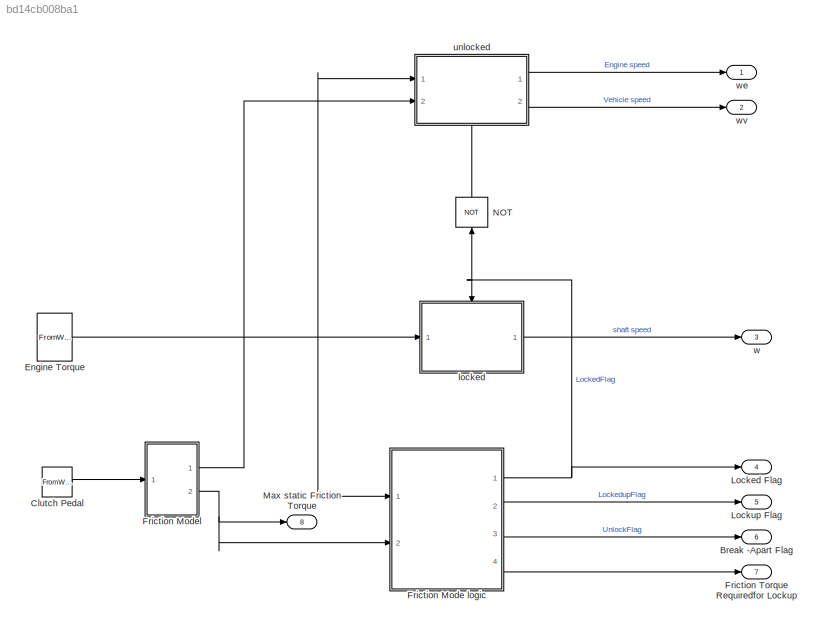
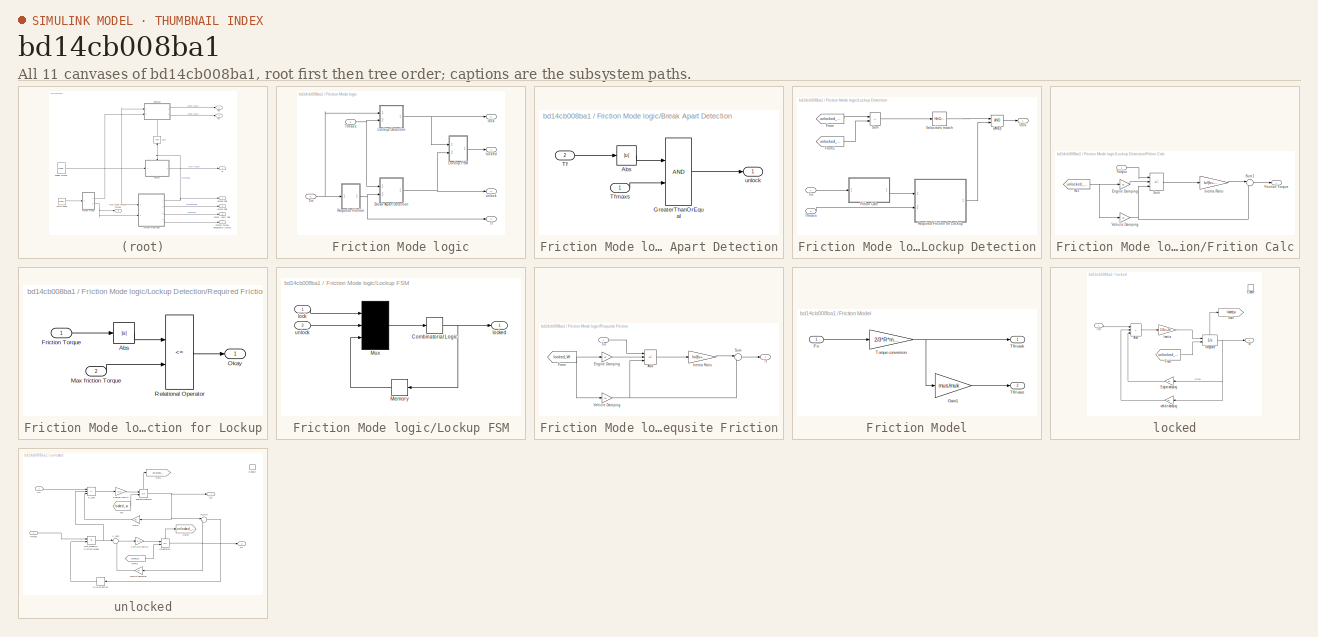
[diagram: thumbnail index - all 11 canvases of the model, root first then tree order]
MODEL slx_bd14cb008ba1
KIND model
CONFIG AbsTol = auto
CONFIG EnableMultiTasking = off
CONFIG FixedStep = auto
CONFIG MaxStep = auto
CONFIG MinStep = auto
CONFIG RelTol = 1e-3
CONFIG SampleTimeConstraint = Unconstrained
CONFIG SolverName = VariableStepAuto
CONFIG StartTime = 0.0
CONFIG StopTime = 10.0
BLOCK [Outport] Break -Apart Flag
  Port = 6
BLOCK [FromWorkspace] Clutch Pedal
  VariableName = Fn
  ZeroCross = off
BLOCK [FromWorkspace] Engine Torque
  VariableName = Tin
  ZeroCross = off
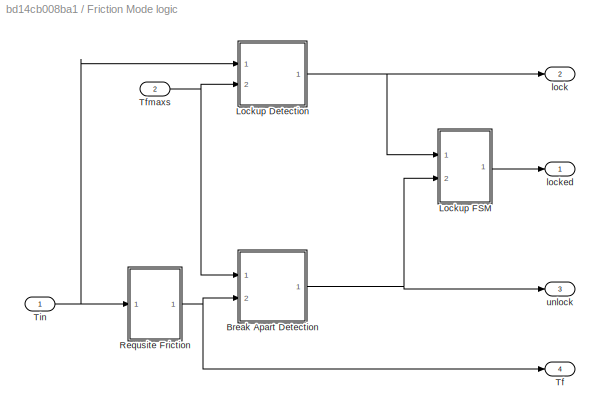
BLOCK [SubSystem] Friction Mode logic
  Ports = [2, 4]
  RequestExecContextInheritance = off
BLOCK [SubSystem] Friction Mode logic/Break Apart Detection
  Ports = [2, 1]
  RequestExecContextInheritance = off
BLOCK [Abs] Friction Mode logic/Break Apart Detection/Abs
  SaturateOnIntegerOverflow = off
BLOCK [RelationalOperator] Friction Mode logic/Break Apart Detection/GreaterThanOrEqual
  InputSameDT = off
  OutDataTypeStr = boolean
  Ports = [2, 1]
  RndMeth = Simplest
BLOCK [Inport] Friction Mode logic/Break Apart Detection/Tf
  Port = 2
BLOCK [Inport] Friction Mode logic/Break Apart Detection/Tfmaxs
BLOCK [Outport] Friction Mode logic/Break Apart Detection/unlock
BLOCK [SubSystem] Friction Mode logic/Lockup Detection
  Ports = [2, 1]
  RequestExecContextInheritance = off
BLOCK [Logic] Friction Mode logic/Lockup Detection/(AND)
  AllPortsSameDT = off
  IconShape = distinctive
  OutDataTypeStr = boolean
  Ports = [2, 1]
BLOCK [SubSystem] Friction Mode logic/Lockup Detection/Frition Calc
  Ports = [1, 1]
  RequestExecContextInheritance = off
BLOCK [Gain] Friction Mode logic/Lockup Detection/Frition Calc/Engine Damping
  Gain = bc
BLOCK [Outport] Friction Mode logic/Lockup Detection/Frition Calc/Friction Torque
BLOCK [Gain] Friction Mode logic/Lockup Detection/Frition Calc/Inertia Ratio
  Gain = Iv/(Iv+Ic)
BLOCK [Sum] Friction Mode logic/Lockup Detection/Frition Calc/Sum
  IconShape = rectangular
  Inputs = |+--
  Ports = [3, 1]
BLOCK [Sum] Friction Mode logic/Lockup Detection/Frition Calc/Sum1
  Inputs = |++
  Ports = [2, 1]
BLOCK [Inport] Friction Mode logic/Lockup Detection/Frition Calc/Torque
BLOCK [Gain] Friction Mode logic/Lockup Detection/Frition Calc/Vehicle Damping
  Gain = bv
BLOCK [From] Friction Mode logic/Lockup Detection/Frition Calc/W1
  GotoTag = unlocked_We
BLOCK [From] Friction Mode logic/Lockup Detection/From
  GotoTag = unlocked_we
  TagVisibility = global
BLOCK [From] Friction Mode logic/Lockup Detection/From1
  GotoTag = unlocked_wv
  TagVisibility = global
BLOCK [SubSystem] Friction Mode logic/Lockup Detection/Required Friction for Lockup
  Ports = [2, 1]
  RequestExecContextInheritance = off
BLOCK [Abs] Friction Mode logic/Lockup Detection/Required Friction for Lockup/Abs
  SaturateOnIntegerOverflow = off
BLOCK [Inport] Friction Mode logic/Lockup Detection/Required Friction for Lockup/Friction Torque
BLOCK [Inport] Friction Mode logic/Lockup Detection/Required Friction for Lockup/Max friction Torque
  Port = 2
BLOCK [Outport] Friction Mode logic/Lockup Detection/Required Friction for Lockup/Okay
BLOCK [RelationalOperator] Friction Mode logic/Lockup Detection/Required Friction for Lockup/Relational Operator
  InputSameDT = off
  Operator = <=
  OutDataTypeStr = boolean
  Ports = [2, 1]
  RndMeth = Simplest
BLOCK [Sum] Friction Mode logic/Lockup Detection/Sum
  IconShape = rectangular
  Inputs = |+-
  Ports = [2, 1]
BLOCK [Inport] Friction Mode logic/Lockup Detection/Tfmaxs
  Port = 2
BLOCK [Inport] Friction Mode logic/Lockup Detection/Tin
BLOCK [HitCross] Friction Mode logic/Lockup Detection/Velocities match
  Ports = [1, 1]
BLOCK [Outport] Friction Mode logic/Lockup Detection/lock
BLOCK [SubSystem] Friction Mode logic/Lockup FSM
  Ports = [2, 1]
  RequestExecContextInheritance = off
BLOCK [CombinatorialLogic] Friction Mode logic/Lockup FSM/Combinatorial Logic
  TruthTable = [0;1;0;0;1;1;1;0]
BLOCK [Memory] Friction Mode logic/Lockup FSM/Memory
  NameLocation = top
BLOCK [Mux] Friction Mode logic/Lockup FSM/Mux
  Inputs = 3
  Ports = [3, 1]
BLOCK [Inport] Friction Mode logic/Lockup FSM/lock
BLOCK [Outport] Friction Mode logic/Lockup FSM/locked
BLOCK [Inport] Friction Mode logic/Lockup FSM/unlock
  Port = 2
BLOCK [SubSystem] Friction Mode logic/Requsite Friction
  Ports = [1, 1]
  RequestExecContextInheritance = off
BLOCK [Sum] Friction Mode logic/Requsite Friction/Add
  IconShape = rectangular
  Inputs = +--
  Ports = [3, 1]
BLOCK [Gain] Friction Mode logic/Requsite Friction/Engine Damping
  Gain = bc
BLOCK [From] Friction Mode logic/Requsite Friction/From
  GotoTag = locked_W
BLOCK [Gain] Friction Mode logic/Requsite Friction/Inertia Ratio
  Gain = Iv/(Iv+Ic)
BLOCK [Sum] Friction Mode logic/Requsite Friction/Sum
  Inputs = |++
  Ports = [2, 1]
BLOCK [Outport] Friction Mode logic/Requsite Friction/Tf
BLOCK [Inport] Friction Mode logic/Requsite Friction/Tin
BLOCK [Gain] Friction Mode logic/Requsite Friction/Vehicle Damping
  Gain = bv
BLOCK [Outport] Friction Mode logic/Tf
  Port = 4
BLOCK [Inport] Friction Mode logic/Tfmaxs
  Port = 2
BLOCK [Inport] Friction Mode logic/Tin
BLOCK [Outport] Friction Mode logic/lock
  Port = 2
BLOCK [Outport] Friction Mode logic/locked
BLOCK [Outport] Friction Mode logic/unlock
  Port = 3
BLOCK [SubSystem] Friction Model
  Ports = [1, 2]
  RequestExecContextInheritance = off
BLOCK [Inport] Friction Model/Fn
BLOCK [Gain] Friction Model/Gain1
  Gain = mus/muk
BLOCK [Outport] Friction Model/Tfmaxk
BLOCK [Outport] Friction Model/Tfmaxs
  Port = 2
BLOCK [Gain] Friction Model/Torque conversion
  Gain = 2/3*R*muk
BLOCK [Outport] Friction Torque Requiredfor Lockup
  Port = 7
BLOCK [Outport] Locked Flag
  Port = 4
BLOCK [Outport] Lockup Flag
  Port = 5
BLOCK [Outport] Max static Friction Torque
  Port = 8
BLOCK [Logic] NOT
  AllPortsSameDT = off
  IconShape = distinctive
  NameLocation = right
  Operator = NOT
  OutDataTypeStr = fixdt(1,16)
  Ports = [1, 1]
BLOCK [SubSystem] locked
  Ports = [1, 1, 1]
  RequestExecContextInheritance = off
BLOCK [Sum] locked/Add
  IconShape = rectangular
  Inputs = +--
  Ports = [3, 1]
BLOCK [EnablePort] locked/Enable
  Ports = []
BLOCK [Gain] locked/Engine damping
  Gain = bc
  NameLocation = top
BLOCK [From] locked/From
  GotoTag = unlocked_we
  IconDisplay = Signal name
  NameLocation = right
  TagVisibility = global
BLOCK [Goto] locked/Goto
  GotoTag = locked_w
  TagVisibility = global
BLOCK [Gain] locked/Inertia
  Gain = 1/Iv+Ic
BLOCK [Integrator] locked/Integrator
  InitialConditionSource = external
  Ports = [2, 1, 0, 0, 1]
  ShowStatePort = on
BLOCK [Inport] locked/Tin
BLOCK [Gain] locked/vehicle damping
  Gain = bv
  NameLocation = top
BLOCK [Outport] locked/w
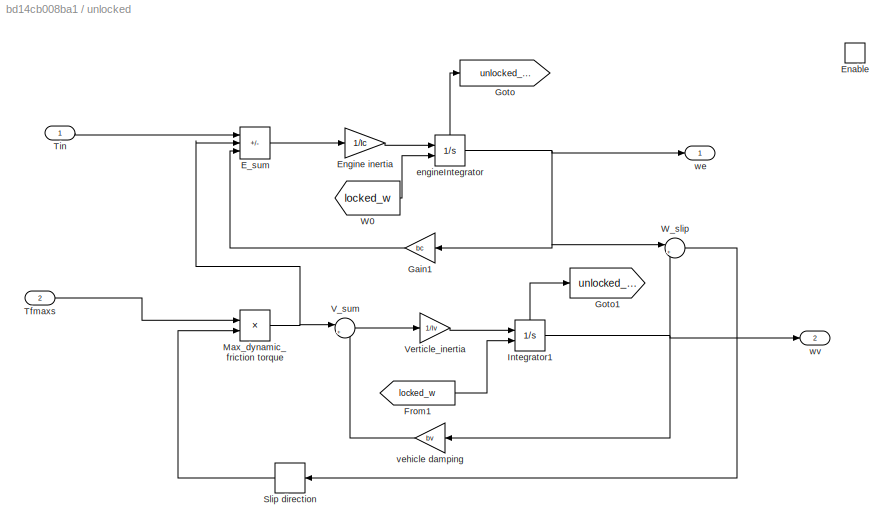
BLOCK [SubSystem] unlocked
  NameLocation = top
  Ports = [2, 2, 1]
  RequestExecContextInheritance = off
BLOCK [Sum] unlocked/E_sum
  IconShape = rectangular
  Inputs = +--
  Ports = [3, 1]
BLOCK [EnablePort] unlocked/Enable
  Ports = []
BLOCK [Gain] unlocked/Engine inertia
  Gain = 1/Ic
BLOCK [From] unlocked/From1
  GotoTag = locked_w
  TagVisibility = global
BLOCK [Gain] unlocked/Gain1
  Gain = bc
  NameLocation = top
BLOCK [Goto] unlocked/Goto
  GotoTag = unlocked_we
  TagVisibility = global
BLOCK [Goto] unlocked/Goto1
  GotoTag = unlocked_wv
  TagVisibility = global
BLOCK [Integrator] unlocked/Integrator1
  InitialConditionSource = external
  Ports = [2, 1, 0, 0, 1]
  ShowStatePort = on
BLOCK [Product] unlocked/Max_dynamic_friction torque
  Ports = [2, 1]
BLOCK [Signum] unlocked/Slip direction
  NameLocation = top
BLOCK [Inport] unlocked/Tfmaxs
  Port = 2
BLOCK [Inport] unlocked/Tin
BLOCK [Sum] unlocked/V_sum
  Inputs = |+-
  Ports = [2, 1]
BLOCK [Gain] unlocked/Verticle_inertia
  Gain = 1/Iv
BLOCK [From] unlocked/W0
  GotoTag = locked_w
  TagVisibility = global
BLOCK [Sum] unlocked/W_slip
  Inputs = |+-
  NameLocation = right
  Ports = [2, 1]
BLOCK [Integrator] unlocked/engineIntegrator
  InitialConditionSource = external
  Ports = [2, 1, 0, 0, 1]
  ShowStatePort = on
BLOCK [Gain] unlocked/vehicle damping
  Gain = bv
  NameLocation = top
BLOCK [Outport] unlocked/we
BLOCK [Outport] unlocked/wv
  Port = 2
BLOCK [Outport] w
  Port = 3
BLOCK [Outport] we
BLOCK [Outport] wv
  Port = 2
LINE Clutch Pedal:1 -> Friction Model:1
NET Engine Torque:1 -> Friction Mode logic:1, locked:1, unlocked:1
LINE Friction Mode logic/Break Apart Detection/Abs:1 -> Friction Mode logic/Break Apart Detection/GreaterThanOrEqual:1
LINE Friction Mode logic/Break Apart Detection/GreaterThanOrEqual:1 -> Friction Mode logic/Break Apart Detection/unlock:1
LINE Friction Mode logic/Break Apart Detection/Tf:1 -> Friction Mode logic/Break Apart Detection/Abs:1
LINE Friction Mode logic/Break Apart Detection/Tfmaxs:1 -> Friction Mode logic/Break Apart Detection/GreaterThanOrEqual:2
NET Friction Mode logic/Break Apart Detection:1 -> Friction Mode logic/Lockup FSM:2, Friction Mode logic/unlock:1
LINE Friction Mode logic/Lockup Detection/(AND):1 -> Friction Mode logic/Lockup Detection/lock:1
LINE Friction Mode logic/Lockup Detection/Frition Calc/Engine Damping:1 -> Friction Mode logic/Lockup Detection/Frition Calc/Sum:2
LINE Friction Mode logic/Lockup Detection/Frition Calc/Inertia Ratio:1 -> Friction Mode logic/Lockup Detection/Frition Calc/Sum1:1
LINE Friction Mode logic/Lockup Detection/Frition Calc/Sum1:1 -> Friction Mode logic/Lockup Detection/Frition Calc/Friction Torque:1
LINE Friction Mode logic/Lockup Detection/Frition Calc/Sum:1 -> Friction Mode logic/Lockup Detection/Frition Calc/Inertia Ratio:1
LINE Friction Mode logic/Lockup Detection/Frition Calc/Torque:1 -> Friction Mode logic/Lockup Detection/Frition Calc/Sum:1
NET Friction Mode logic/Lockup Detection/Frition Calc/Vehicle Damping:1 -> Friction Mode logic/Lockup Detection/Frition Calc/Sum1:2, Friction Mode logic/Lockup Detection/Frition Calc/Sum:3
NET Friction Mode logic/Lockup Detection/Frition Calc/W1:1 -> Friction Mode logic/Lockup Detection/Frition Calc/Engine Damping:1, Friction Mode logic/Lockup Detection/Frition Calc/Vehicle Damping:1
LINE Friction Mode logic/Lockup Detection/Frition Calc:1 -> Friction Mode logic/Lockup Detection/Required Friction for Lockup:1
LINE Friction Mode logic/Lockup Detection/From1:1 -> Friction Mode logic/Lockup Detection/Sum:2
LINE Friction Mode logic/Lockup Detection/From:1 -> Friction Mode logic/Lockup Detection/Sum:1
LINE Friction Mode logic/Lockup Detection/Required Friction for Lockup/Abs:1 -> Friction Mode logic/Lockup Detection/Required Friction for Lockup/Relational Operator:1
LINE Friction Mode logic/Lockup Detection/Required Friction for Lockup/Friction Torque:1 -> Friction Mode logic/Lockup Detection/Required Friction for Lockup/Abs:1
LINE Friction Mode logic/Lockup Detection/Required Friction for Lockup/Max friction Torque:1 -> Friction Mode logic/Lockup Detection/Required Friction for Lockup/Relational Operator:2
LINE Friction Mode logic/Lockup Detection/Required Friction for Lockup/Relational Operator:1 -> Friction Mode logic/Lockup Detection/Required Friction for Lockup/Okay:1
LINE Friction Mode logic/Lockup Detection/Required Friction for Lockup:1 -> Friction Mode logic/Lockup Detection/(AND):2
LINE Friction Mode logic/Lockup Detection/Sum:1 -> Friction Mode logic/Lockup Detection/Velocities match:1
LINE Friction Mode logic/Lockup Detection/Tfmaxs:1 -> Friction Mode logic/Lockup Detection/Required Friction for Lockup:2
LINE Friction Mode logic/Lockup Detection/Tin:1 -> Friction Mode logic/Lockup Detection/Frition Calc:1
LINE Friction Mode logic/Lockup Detection/Velocities match:1 -> Friction Mode logic/Lockup Detection/(AND):1
NET Friction Mode logic/Lockup Detection:1 -> Friction Mode logic/Lockup FSM:1, Friction Mode logic/lock:1
NET Friction Mode logic/Lockup FSM/Combinatorial Logic:1 -> Friction Mode logic/Lockup FSM/Memory:1, Friction Mode logic/Lockup FSM/locked:1
LINE Friction Mode logic/Lockup FSM/Memory:1 -> Friction Mode logic/Lockup FSM/Mux:3
LINE Friction Mode logic/Lockup FSM/Mux:1 -> Friction Mode logic/Lockup FSM/Combinatorial Logic:1
LINE Friction Mode logic/Lockup FSM/lock:1 -> Friction Mode logic/Lockup FSM/Mux:1
LINE Friction Mode logic/Lockup FSM/unlock:1 -> Friction Mode logic/Lockup FSM/Mux:2
LINE Friction Mode logic/Lockup FSM:1 -> Friction Mode logic/locked:1
LINE Friction Mode logic/Requsite Friction/Add:1 -> Friction Mode logic/Requsite Friction/Inertia Ratio:1
LINE Friction Mode logic/Requsite Friction/Engine Damping:1 -> Friction Mode logic/Requsite Friction/Add:2
NET Friction Mode logic/Requsite Friction/From:1 -> Friction Mode logic/Requsite Friction/Engine Damping:1, Friction Mode logic/Requsite Friction/Vehicle Damping:1
LINE Friction Mode logic/Requsite Friction/Inertia Ratio:1 -> Friction Mode logic/Requsite Friction/Sum:1
LINE Friction Mode logic/Requsite Friction/Sum:1 -> Friction Mode logic/Requsite Friction/Tf:1
LINE Friction Mode logic/Requsite Friction/Tin:1 -> Friction Mode logic/Requsite Friction/Add:1
NET Friction Mode logic/Requsite Friction/Vehicle Damping:1 -> Friction Mode logic/Requsite Friction/Add:3, Friction Mode logic/Requsite Friction/Sum:2
NET Friction Mode logic/Requsite Friction:1 -> Friction Mode logic/Break Apart Detection:2, Friction Mode logic/Tf:1
NET Friction Mode logic/Tfmaxs:1 -> Friction Mode logic/Break Apart Detection:1, Friction Mode logic/Lockup Detection:2
NET Friction Mode logic/Tin:1 -> Friction Mode logic/Lockup Detection:1, Friction Mode logic/Requsite Friction:1
NET Friction Mode logic:1 -> Locked Flag:1, NOT:1, locked:enable
LINE Friction Mode logic:2 -> Lockup Flag:1
LINE Friction Mode logic:3 -> Break -Apart Flag:1
LINE Friction Mode logic:4 -> Friction Torque Requiredfor Lockup:1
LINE Friction Model/Fn:1 -> Friction Model/Torque conversion:1
LINE Friction Model/Gain1:1 -> Friction Model/Tfmaxs:1
NET Friction Model/Torque conversion:1 -> Friction Model/Gain1:1, Friction Model/Tfmaxk:1
LINE Friction Model:1 -> unlocked:2
NET Friction Model:2 -> Friction Mode logic:2, Max static Friction Torque:1
LINE NOT:1 -> unlocked:enable
LINE locked/Add:1 -> locked/Inertia:1
LINE locked/Engine damping:1 -> locked/Add:3
LINE locked/From:1 -> locked/Integrator:2
LINE locked/Inertia:1 -> locked/Integrator:1
NET locked/Integrator:1 -> locked/Engine damping:1, locked/vehicle damping:1, locked/w:1
LINE locked/Integrator:state -> locked/Goto:1
LINE locked/Tin:1 -> locked/Add:1
LINE locked/vehicle damping:1 -> locked/Add:2
LINE locked:1 -> w:1
LINE unlocked/E_sum:1 -> unlocked/Engine inertia:1
LINE unlocked/Engine inertia:1 -> unlocked/engineIntegrator:1
LINE unlocked/From1:1 -> unlocked/Integrator1:2
LINE unlocked/Gain1:1 -> unlocked/E_sum:3
NET unlocked/Integrator1:1 -> unlocked/W_slip:2, unlocked/vehicle damping:1, unlocked/wv:1
LINE unlocked/Integrator1:state -> unlocked/Goto1:1
NET unlocked/Max_dynamic_friction torque:1 -> unlocked/E_sum:2, unlocked/V_sum:1
LINE unlocked/Slip direction:1 -> unlocked/Max_dynamic_friction torque:2
LINE unlocked/Tfmaxs:1 -> unlocked/Max_dynamic_friction torque:1
LINE unlocked/Tin:1 -> unlocked/E_sum:1
LINE unlocked/V_sum:1 -> unlocked/Verticle_inertia:1
LINE unlocked/Verticle_inertia:1 -> unlocked/Integrator1:1
LINE unlocked/W0:1 -> unlocked/engineIntegrator:2
LINE unlocked/W_slip:1 -> unlocked/Slip direction:1
NET unlocked/engineIntegrator:1 -> unlocked/Gain1:1, unlocked/W_slip:1, unlocked/we:1
LINE unlocked/engineIntegrator:state -> unlocked/Goto:1
LINE unlocked/vehicle damping:1 -> unlocked/V_sum:2
LINE unlocked:1 -> we:1
LINE unlocked:2 -> wv:1
note: NET lines group one-source signal fan-out (src -> all destinations, sorted); 1:1 wires keep LINE
